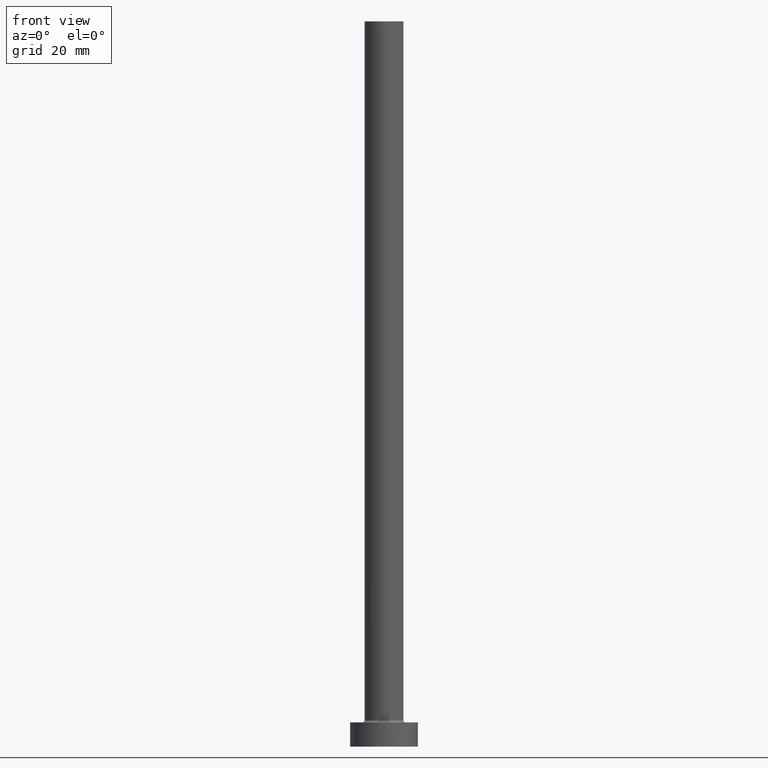
[diagram: clean part render]
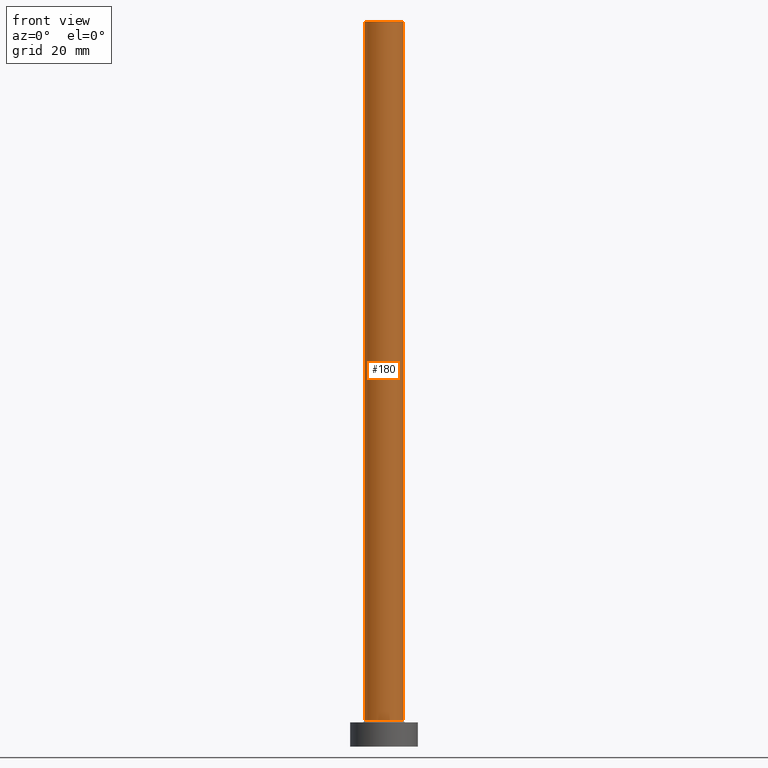
[diagram: same view with one face highlighted and labeled with its STEP entity id]
A machine part, front view. The second image highlights one B-rep face of the part: STEP entity #180.
In plain terms, the highlighted cylindrical surface (edge-blend (fillet) strip) has radius 4 mm, axis along (-0, -0, -1).
Its self-contained STEP definition (entity closure, byte-faithful):
#6 = DIRECTION ( 'NONE',  ( 1.000000000000000000, 0.000000000000000000, 0.000000000000000000 ) ) ;
#8 = DIRECTION ( 'NONE',  ( 0.000000000000000000, 0.000000000000000000, 1.000000000000000000 ) ) ;
#14 = VERTEX_POINT ( 'NONE', #412 ) ;
#40 = VERTEX_POINT ( 'NONE', #450 ) ;
#57 = VECTOR ( 'NONE', #327, 1000.000000000000000 ) ;
#68 = ORIENTED_EDGE ( 'NONE', *, *, #268, .F. ) ;
#76 = DIRECTION ( 'NONE',  ( -0.000000000000000000, -0.000000000000000000, -1.000000000000000000 ) ) ;
#148 = DIRECTION ( 'NONE',  ( 0.000000000000000000, 0.000000000000000000, 1.000000000000000000 ) ) ;
#160 = LINE ( 'NONE', #286, #57 ) ;
#161 = EDGE_CURVE ( 'NONE', #14, #423, #357, .T. ) ;
#179 = DIRECTION ( 'NONE',  ( -1.000000000000000000, 0.000000000000000000, 0.000000000000000000 ) ) ;
#180 = ADVANCED_FACE ( 'NONE', ( #240 ), #354, .T. ) ;
#181 = ORIENTED_EDGE ( 'NONE', *, *, #184, .T. ) ;
#183 = ORIENTED_EDGE ( 'NONE', *, *, #215, .F. ) ;
#184 = EDGE_CURVE ( 'NONE', #423, #396, #380, .T. ) ;
#205 = DIRECTION ( 'NONE',  ( -0.000000000000000000, -0.000000000000000000, -1.000000000000000000 ) ) ;
#209 = DIRECTION ( 'NONE',  ( 1.000000000000000000, 0.000000000000000000, 0.000000000000000000 ) ) ;
#215 = EDGE_CURVE ( 'NONE', #14, #40, #324, .T. ) ;
#240 = FACE_OUTER_BOUND ( 'NONE', #385, .T. ) ;
#250 = CARTESIAN_POINT ( 'NONE',  ( 0.000000000000000000, 0.000000000000000000, 150.0000000000000000 ) ) ;
#268 = EDGE_CURVE ( 'NONE', #40, #396, #160, .T. ) ;
#280 = CARTESIAN_POINT ( 'NONE',  ( 0.000000000000000000, 0.000000000000000000, 150.0000000000000000 ) ) ;
#286 = CARTESIAN_POINT ( 'NONE',  ( 4.000000000000000000, 4.898587196589412829E-16, 150.0000000000000000 ) ) ;
#305 = AXIS2_PLACEMENT_3D ( 'NONE', #280, #148, #209 ) ;
#314 = AXIS2_PLACEMENT_3D ( 'NONE', #250, #205, #179 ) ;
#324 = CIRCLE ( 'NONE', #305, 4.000000000000000000 ) ;
#327 = DIRECTION ( 'NONE',  ( -0.000000000000000000, -0.000000000000000000, -1.000000000000000000 ) ) ;
#346 = VECTOR ( 'NONE', #76, 1000.000000000000000 ) ;
#353 = ORIENTED_EDGE ( 'NONE', *, *, #161, .T. ) ;
#354 = CYLINDRICAL_SURFACE ( 'NONE', #314, 4.000000000000000000 ) ;
#357 = LINE ( 'NONE', #394, #346 ) ;
#361 = CARTESIAN_POINT ( 'NONE',  ( 0.000000000000000000, 0.000000000000000000, 5.500000000000005329 ) ) ;
#380 = CIRCLE ( 'NONE', #444, 4.000000000000000000 ) ;
#385 = EDGE_LOOP ( 'NONE', ( #68, #183, #353, #181 ) ) ;
#393 = CARTESIAN_POINT ( 'NONE',  ( 4.000000000000000000, 4.898587196589412829E-16, 5.500000000000005329 ) ) ;
#394 = CARTESIAN_POINT ( 'NONE',  ( -4.000000000000000000, 0.000000000000000000, 150.0000000000000000 ) ) ;
#396 = VERTEX_POINT ( 'NONE', #393 ) ;
#412 = CARTESIAN_POINT ( 'NONE',  ( -4.000000000000000000, 0.000000000000000000, 150.0000000000000000 ) ) ;
#423 = VERTEX_POINT ( 'NONE', #435 ) ;
#435 = CARTESIAN_POINT ( 'NONE',  ( -4.000000000000000000, 0.000000000000000000, 5.500000000000005329 ) ) ;
#444 = AXIS2_PLACEMENT_3D ( 'NONE', #361, #8, #6 ) ;
#450 = CARTESIAN_POINT ( 'NONE',  ( 4.000000000000000000, 4.898587196589412829E-16, 150.0000000000000000 ) ) ;